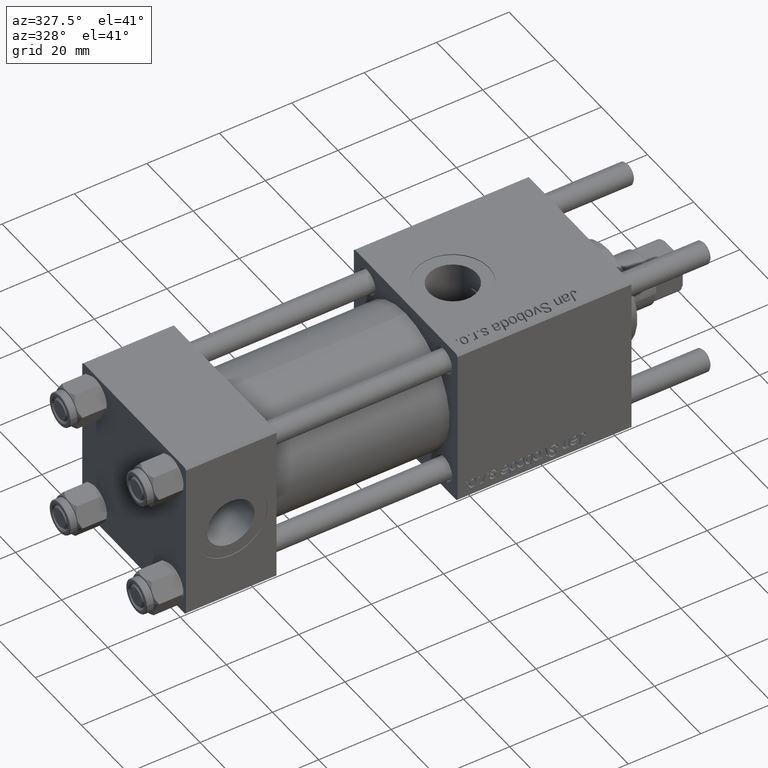
[diagram: clean part render]
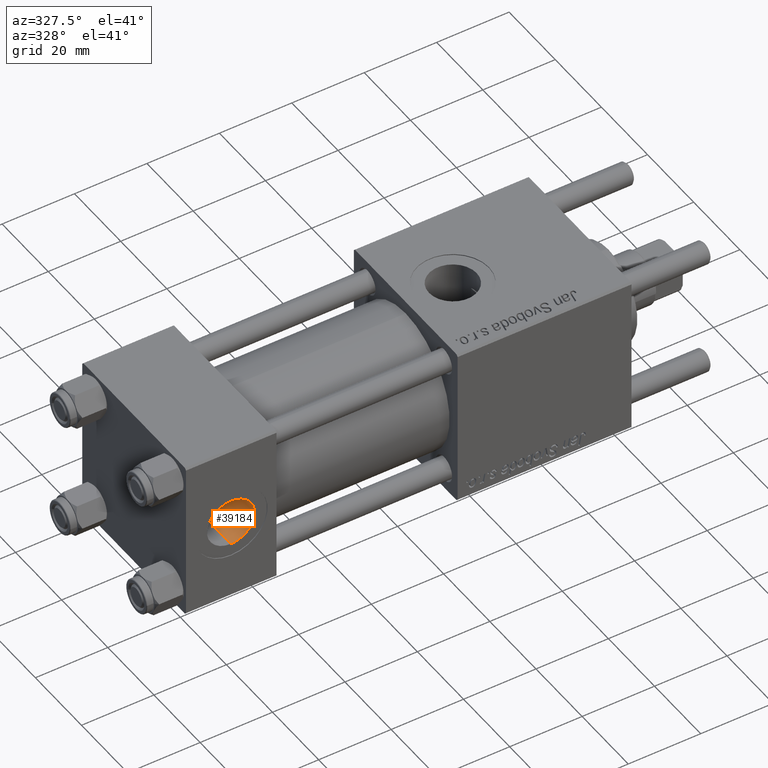
[diagram: same view with one face highlighted and labeled with its STEP entity id]
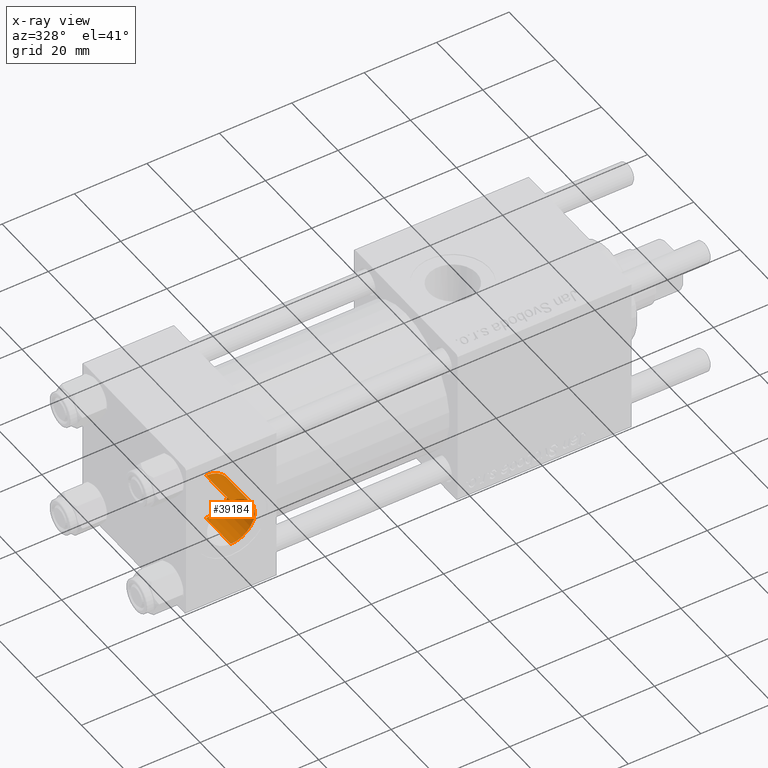
[diagram: x-ray of the same camera — body ghosted, the highlighted face saturated]
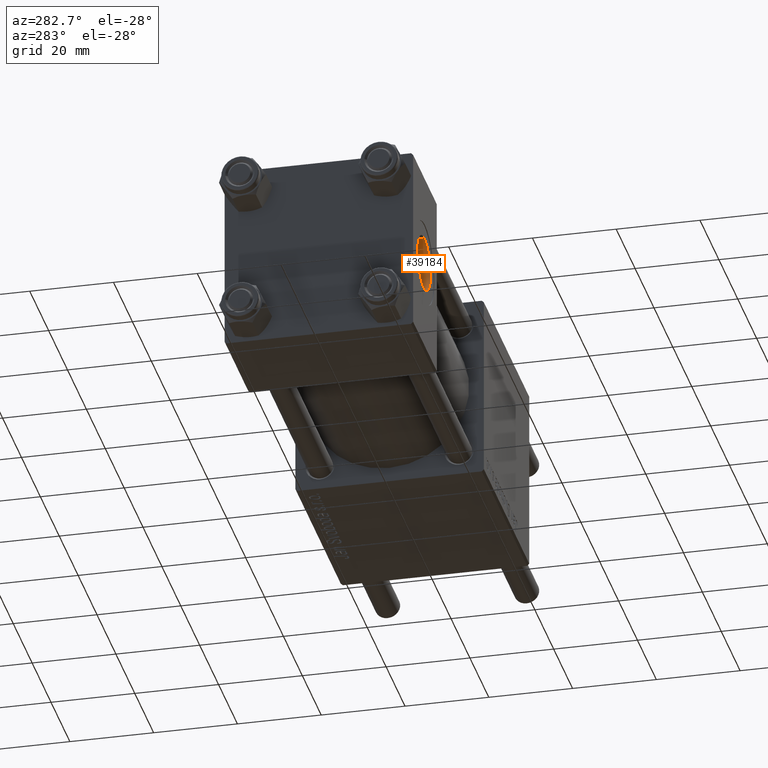
[diagram: same view with one face highlighted and labeled with its STEP entity id]
A machine part, auxiliary view. The second image highlights one B-rep face of the part: STEP entity #39184.
The next image is the same camera in x-ray: the body ghosted, the highlighted face saturated — about 0% of this face is hidden behind the body in this view.
A second angle (auxiliary view) of the same face is appended — the face is thin or edge-on in the first view.
In plain terms, the highlighted cylindrical surface (edge-blend (fillet) strip) has radius 6.58 mm, axis along (-0, -1, -0).
Its self-contained STEP definition (entity closure, byte-faithful):
#1248 = DIRECTION ( 'NONE',  ( -0.000000000000000000, 1.000000000000000000, 8.673617379884045333E-17 ) ) ;
#1386 = CARTESIAN_POINT ( 'NONE',  ( 12.50000000000000000, -22.30000000000000071, 1.734723475976808635E-17 ) ) ;
#1849 = CARTESIAN_POINT ( 'NONE',  ( 12.50000000000000000, -11.53999999999997428, -6.579999999999997407 ) ) ;
#4426 = VERTEX_POINT ( 'NONE', #29309 ) ;
#8415 = CARTESIAN_POINT ( 'NONE',  ( 12.50000000000000000, -11.60000000000000142, -6.579999999999997407 ) ) ;
#9523 = CARTESIAN_POINT ( 'NONE',  ( 12.50000000000000000, -22.30000000000000071, -6.579999999999998295 ) ) ;
#12931 = AXIS2_PLACEMENT_3D ( 'NONE', #40010, #1248, #27635 ) ;
#15148 = DIRECTION ( 'NONE',  ( 0.000000000000000000, 0.000000000000000000, -1.000000000000000000 ) ) ;
#19021 = CARTESIAN_POINT ( 'NONE',  ( 12.50000000000000000, -11.60000000000000142, 9.454242944073598665E-16 ) ) ;
#19919 = ORIENTED_EDGE ( 'NONE', *, *, #42556, .F. ) ;
#19947 = DIRECTION ( 'NONE',  ( -0.000000000000000000, -1.000000000000000000, -8.673617379884036705E-17 ) ) ;
#21012 = AXIS2_PLACEMENT_3D ( 'NONE', #1386, #40993, #15148 ) ;
#22809 = ORIENTED_EDGE ( 'NONE', *, *, #51657, .T. ) ;
#23964 = VECTOR ( 'NONE', #43711, 1000.000000000000000 ) ;
#23973 = LINE ( 'NONE', #24259, #39451 ) ;
#24145 = ORIENTED_EDGE ( 'NONE', *, *, #44820, .T. ) ;
#24197 = DIRECTION ( 'NONE',  ( 0.000000000000000000, 0.000000000000000000, -1.000000000000000000 ) ) ;
#24259 = CARTESIAN_POINT ( 'NONE',  ( 12.50000000000000000, -11.60000000000000142, 6.579999999999999183 ) ) ;
#27635 = DIRECTION ( 'NONE',  ( 0.000000000000000000, 0.000000000000000000, -1.000000000000000000 ) ) ;
#28496 = FACE_OUTER_BOUND ( 'NONE', #51759, .T. ) ;
#29309 = CARTESIAN_POINT ( 'NONE',  ( 12.50000000000000000, -11.53999999999997428, 6.579999999999999183 ) ) ;
#32301 = ORIENTED_EDGE ( 'NONE', *, *, #43370, .T. ) ;
#34753 = AXIS2_PLACEMENT_3D ( 'NONE', #19021, #46014, #24197 ) ;
#39106 = VERTEX_POINT ( 'NONE', #40575 ) ;
#39184 = ADVANCED_FACE ( 'NONE', ( #28496 ), #40845, .F. ) ;
#39451 = VECTOR ( 'NONE', #19947, 1000.000000000000000 ) ;
#40010 = CARTESIAN_POINT ( 'NONE',  ( 12.50000000000000000, -11.53999999999997428, 9.506284648352922599E-16 ) ) ;
#40575 = CARTESIAN_POINT ( 'NONE',  ( 12.50000000000000000, -22.30000000000000071, 6.579999999999998295 ) ) ;
#40845 = CYLINDRICAL_SURFACE ( 'NONE', #34753, 6.579999999999998295 ) ;
#40993 = DIRECTION ( 'NONE',  ( 0.000000000000000000, -1.000000000000000000, -8.673617379884036705E-17 ) ) ;
#42556 = EDGE_CURVE ( 'NONE', #4426, #39106, #23973, .T. ) ;
#43370 = EDGE_CURVE ( 'NONE', #4426, #48160, #56026, .T. ) ;
#43711 = DIRECTION ( 'NONE',  ( -0.000000000000000000, -1.000000000000000000, -8.673617379884036705E-17 ) ) ;
#44820 = EDGE_CURVE ( 'NONE', #48160, #50507, #55808, .T. ) ;
#45753 = CIRCLE ( 'NONE', #21012, 6.579999999999998295 ) ;
#46014 = DIRECTION ( 'NONE',  ( -0.000000000000000000, -1.000000000000000000, -8.673617379884036705E-17 ) ) ;
#48160 = VERTEX_POINT ( 'NONE', #1849 ) ;
#50507 = VERTEX_POINT ( 'NONE', #9523 ) ;
#51657 = EDGE_CURVE ( 'NONE', #50507, #39106, #45753, .T. ) ;
#51759 = EDGE_LOOP ( 'NONE', ( #19919, #32301, #24145, #22809 ) ) ;
#55808 = LINE ( 'NONE', #8415, #23964 ) ;
#56026 = CIRCLE ( 'NONE', #12931, 6.579999999999998295 ) ;